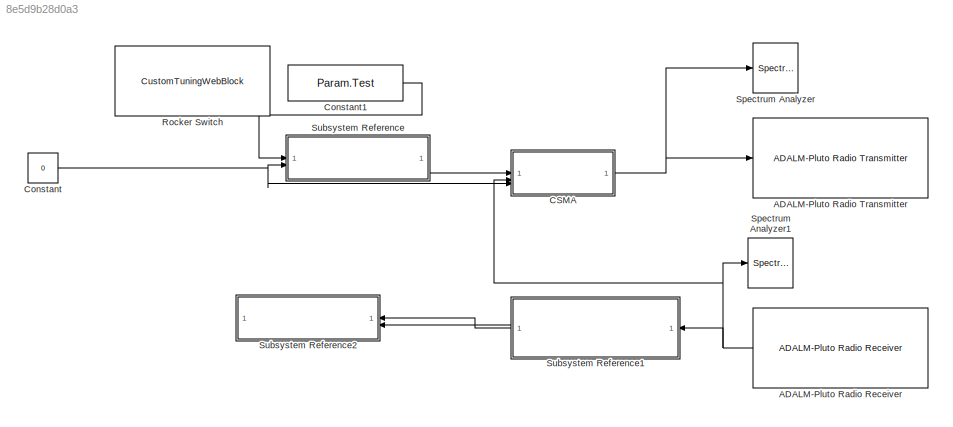
MODEL slx_8e5d9b28d0a3
KIND model
CONFIG AbsTol = auto
CONFIG EnableMultiTasking = off
CONFIG FixedStep = auto
CONFIG MaxStep = auto
CONFIG MinStep = auto
CONFIG RelTol = 1e-3
CONFIG SampleTimeConstraint = Unconstrained
CONFIG SolverName = FixedStepAuto
CONFIG StartTime = 0.0
CONFIG StopFcn = set_param([bdroot '/Rocker Switch'], 'Value', '0')
CONFIG StopTime = inf
BLOCK [Reference] ADALM-Pluto Radio Receiver  REF=plutoradiolib/ADALM-Pluto Radio
Receiver
  SourceBlock = plutoradiolib/ADALM-Pluto Radio\nReceiver
  SourceType = comm.SDRRxPluto
BLOCK [Reference] ADALM-Pluto Radio Transmitter  REF=plutoradiolib/ADALM-Pluto Radio
Transmitter
  SourceBlock = plutoradiolib/ADALM-Pluto Radio\nTransmitter
  SourceType = comm.SDRTxPluto
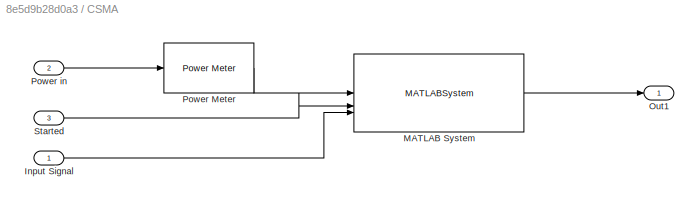
BLOCK [SubSystem] CSMA
BLOCK [Inport] CSMA/Input Signal
BLOCK [MATLABSystem] CSMA/MATLAB System
  MaskDisplay = disp('CSMA_CA_system');\nport_label('input',1,'powerlevel');\nport_label('input',2,'started');\nport_label('input',3,'frame');\nport_label('output',1,'y');
  MaskType = CSMA_CA_system
  Power_level = 3
  Probability = 0.25
  SimulateUsing = Code generation
  System = CSMA_CA_system
BLOCK [Outport] CSMA/Out1
BLOCK [Reference] CSMA/Power Meter  REF=dspstat3/Power Meter
  LibrarySourceBlock = commutil2/Power Meter
  SourceBlock = dspstat3/Power Meter
  SourceType = dsp.simulink.PowerMeter
BLOCK [Inport] CSMA/Power in
  Port = 2
BLOCK [Inport] CSMA/Started
  Port = 3
BLOCK [Constant] Constant
  Value = 0
BLOCK [Constant] Constant1
  Value = Param.Test
  VectorParams1D = off
BLOCK [CustomTuningWebBlock] Rocker Switch
  Configuration = {"components":[{"name":"CustomSwitchStateComponent","settings":{"position":[0,0,1,1],"states":[{"HitRegion":{"position":[0,0,0.5,1]},"Image":{"position":[0.13,0,1,0.75],"size":[1,0.75],"src":"data:image\/svg+xml;base64,PHN2ZyB4bWxucz0iaHR0cDovL3d3dy53My5vcmcvMjAwMC9zdmciIHhtbG5zOnhsaW5rPSJodHRwOi8vd3d3LnczLm9yZy8xOTk5L3hsaW5rIiB2aWV3Qm94PSIwIDAgNzUgMjQuOCI+PGRlZnM+PHN0eWxlPi5jbHMtMXtmaWxsOnVybCgjc...<+8958ch>
  LabelPosition = Hide
  ShowInitialText = on
BLOCK [SpectrumAnalyzer] Spectrum Analyzer
  GraphicalSettings = {"GraphicalSettings":{"Style":{"BackgroundColor":[0.12941176470588237,0.12941176470588237,0.12941176470588237],"AxesColor":[0.07058823529411765,0.07058823529411765,0.07058823529411765],"LabelsColor":[0.8509803921568627,0.8509803921568627,0.8509803921568627],"PreserveColors":false,"Visible":[true],"LineStyle":["-"],"LineWidth":[1.5],"BarWidth":[0.9],"LineColor":[[1,0.9098039215686274,0.392156862745...<+999ch>
  ScopeFrameLocation = window
  WasSavedAsWebScope = on
  WindowInvariantSamplesPerUpdate = on
  WindowPosition = [699.000000,71.000000,800.000000,500.000000,]
  YLimits = [-106.65781669,13.38148294]
BLOCK [SpectrumAnalyzer] Spectrum Analyzer1
  GraphicalSettings = {"GraphicalSettings":{"Style":{"BackgroundColor":[0.12941176470588237,0.12941176470588237,0.12941176470588237],"AxesColor":[0.07058823529411765,0.07058823529411765,0.07058823529411765],"LabelsColor":[0.8509803921568627,0.8509803921568627,0.8509803921568627],"PreserveColors":false,"Visible":[true],"LineStyle":["-"],"LineWidth":[1.5],"BarWidth":[0.9],"LineColor":[[1,0.9098039215686274,0.392156862745...<+999ch>
  ScopeFrameLocation = window
  WasSavedAsWebScope = on
  WindowInvariantSamplesPerUpdate = on
  WindowPosition = [-83.000000,117.000000,800.000000,500.000000,]
  YLimits = [-53.0557854,11.82598776]
BLOCK [SubSystem] Subsystem Reference
  ReferencedSubsystem = bare_trans_QPSK
BLOCK [SubSystem] Subsystem Reference1
  ReferencedSubsystem = bare_recv_QPSK
BLOCK [SubSystem] Subsystem Reference2
  ReferencedSubsystem = test_received_frames
NET ADALM-Pluto Radio Receiver:1 -> CSMA:2, Spectrum Analyzer1:1, Subsystem Reference1:1
LINE CSMA/Input Signal:1 -> CSMA/MATLAB System:3
LINE CSMA/MATLAB System:1 -> CSMA/Out1:1
LINE CSMA/Power Meter:1 -> CSMA/MATLAB System:1
LINE CSMA/Power in:1 -> CSMA/Power Meter:1
LINE CSMA/Started:1 -> CSMA/MATLAB System:2
NET CSMA:1 -> ADALM-Pluto Radio Transmitter:1, Spectrum Analyzer:1
LINE Constant1:1 -> Subsystem Reference:1
NET Constant:1 -> CSMA:3, Subsystem Reference:2
LINE Subsystem Reference1:1 -> Subsystem Reference2:1
LINE Subsystem Reference1:2 -> Subsystem Reference2:2
LINE Subsystem Reference:1 -> CSMA:1
note: NET lines group one-source signal fan-out (src -> all destinations, sorted); 1:1 wires keep LINE
